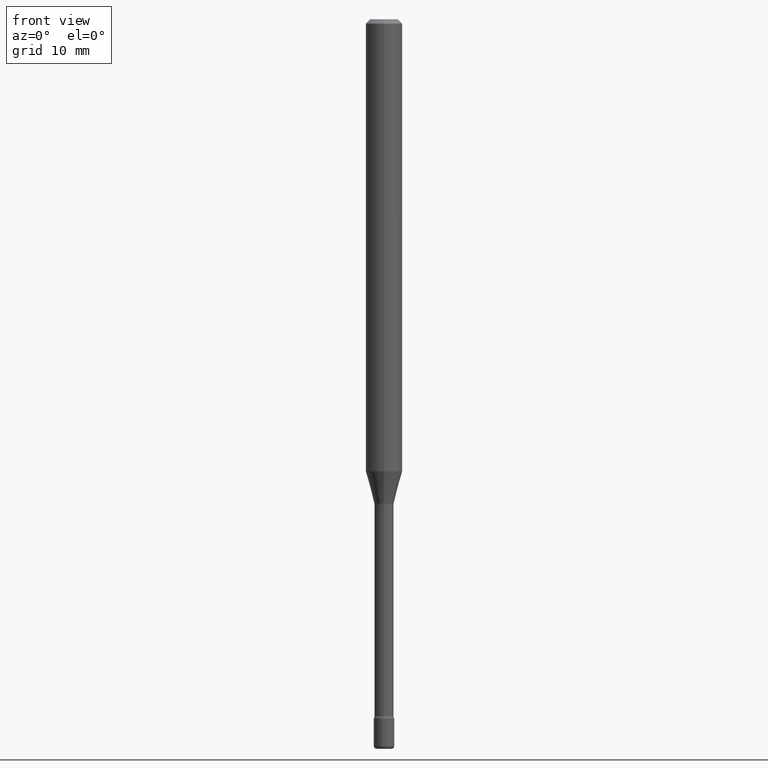
[diagram: clean part render]
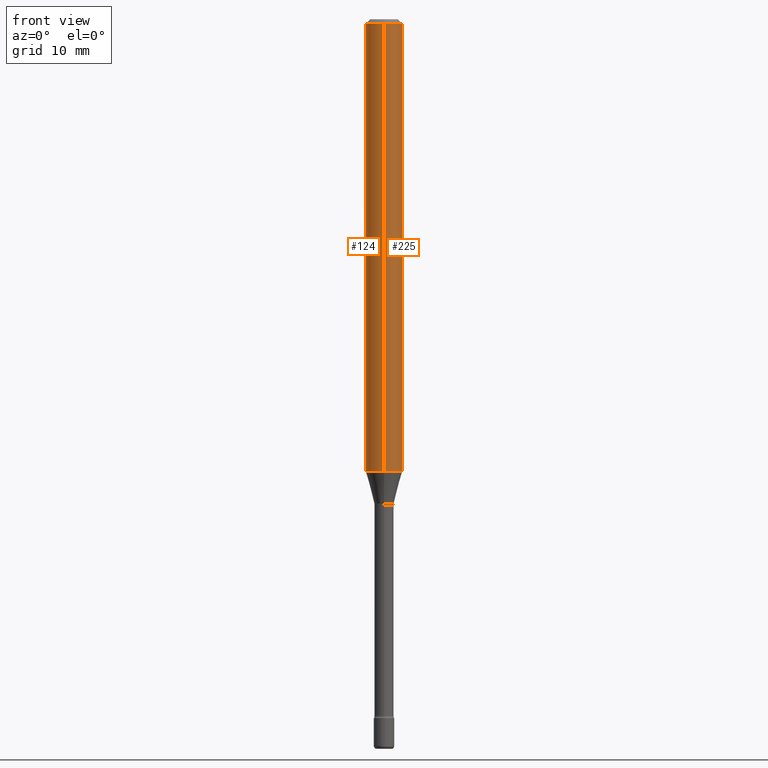
[diagram: same view with one multi-face feature highlighted, each face labeled with its STEP entity id]
A machine part, front view. The highlighted faces form ONE feature: a constant-radius fillet chain: 2 tangent blend faces with common blend radius 1.5875 mm. The faces share edges in the B-rep.
Their STEP definitions:
[1] entity #225 (Cylinder):
#9 = VERTEX_POINT ( 'NONE', #307 ) ;
#22 = CARTESIAN_POINT ( 'NONE',  ( -4.364351673553916201E-16, -0.06250000000000000000, 6.963005484091270833E-16 ) ) ;
#28 = EDGE_CURVE ( 'NONE', #57, #9, #130, .T. ) ;
#57 = VERTEX_POINT ( 'NONE', #317 ) ;
#61 = ORIENTED_EDGE ( 'NONE', *, *, #86, .F. ) ;
#83 = DIRECTION ( 'NONE',  ( -2.445361929537154917E-29, 3.491634392286096321E-15, 1.000000000000000000 ) ) ;
#84 = CARTESIAN_POINT ( 'NONE',  ( 3.668042894305739311E-31, -5.237451588429154292E-17, -0.01500000000000002720 ) ) ;
#86 = EDGE_CURVE ( 'NONE', #416, #9, #149, .T. ) ;
#103 = VERTEX_POINT ( 'NONE', #337 ) ;
#116 = DIRECTION ( 'NONE',  ( -2.445361929537154917E-29, 3.491634392286096321E-15, 1.000000000000000000 ) ) ;
#130 = LINE ( 'NONE', #477, #349 ) ;
#136 = CARTESIAN_POINT ( 'NONE',  ( 3.789164840099429105E-29, -5.410396765372311096E-15, -1.549531296095961519 ) ) ;
#149 = CIRCLE ( 'NONE', #450, 0.06250000000000000000 ) ;
#163 = DIRECTION ( 'NONE',  ( -6.982962677686265922E-15, -1.000000000000000000, 3.491634392286095926E-15 ) ) ;
#190 = DIRECTION ( 'NONE',  ( -2.445361929537154917E-29, 3.491634392286096321E-15, 1.000000000000000000 ) ) ;
#207 = FACE_OUTER_BOUND ( 'NONE', #324, .T. ) ;
#225 = ADVANCED_FACE ( 'NONE', ( #207 ), #254, .T. ) ;
#245 = LINE ( 'NONE', #22, #423 ) ;
#254 = CYLINDRICAL_SURFACE ( 'NONE', #335, 0.06250000000000000000 ) ;
#307 = CARTESIAN_POINT ( 'NONE',  ( 4.440892098501006787E-16, 0.06249999999999995143, -0.01500000000000024578 ) ) ;
#316 = CARTESIAN_POINT ( 'NONE',  ( -4.364351673553912750E-16, -0.06250000000000005551, -0.01499999999999981036 ) ) ;
#317 = CARTESIAN_POINT ( 'NONE',  ( 4.440892098501002843E-16, 0.06249999999999456685, -1.549531296095961963 ) ) ;
#324 = EDGE_LOOP ( 'NONE', ( #534, #499, #61, #460 ) ) ;
#335 = AXIS2_PLACEMENT_3D ( 'NONE', #427, #83, #163 ) ;
#337 = CARTESIAN_POINT ( 'NONE',  ( -4.364351673553540013E-16, -0.06250000000000544009, -1.549531296095961297 ) ) ;
#349 = VECTOR ( 'NONE', #116, 39.37007874015748143 ) ;
#354 = DIRECTION ( 'NONE',  ( -6.982962677686265922E-15, -1.000000000000000000, 4.370956789862821150E-15 ) ) ;
#416 = VERTEX_POINT ( 'NONE', #316 ) ;
#417 = DIRECTION ( 'NONE',  ( -2.445361929537154917E-29, 3.491634392286096321E-15, 1.000000000000000000 ) ) ;
#419 = EDGE_CURVE ( 'NONE', #103, #57, #523, .T. ) ;
#423 = VECTOR ( 'NONE', #417, 39.37007874015748143 ) ;
#427 = CARTESIAN_POINT ( 'NONE',  ( -1.169113584055446105E-44, 1.669184350826100908E-30, 4.780733988912460139E-16 ) ) ;
#429 = DIRECTION ( 'NONE',  ( -2.445361929537154917E-29, 3.491634392286096321E-15, 1.000000000000000000 ) ) ;
#450 = AXIS2_PLACEMENT_3D ( 'NONE', #84, #429, #476 ) ;
#452 = AXIS2_PLACEMENT_3D ( 'NONE', #136, #190, #354 ) ;
#460 = ORIENTED_EDGE ( 'NONE', *, *, #516, .F. ) ;
#476 = DIRECTION ( 'NONE',  ( -6.982962677686265922E-15, -1.000000000000000000, 3.483106191921935554E-15 ) ) ;
#477 = CARTESIAN_POINT ( 'NONE',  ( 4.440892098500625669E-16, 0.06250000000000000000, 2.598462493733650432E-16 ) ) ;
#499 = ORIENTED_EDGE ( 'NONE', *, *, #28, .T. ) ;
#516 = EDGE_CURVE ( 'NONE', #103, #416, #245, .T. ) ;
#523 = CIRCLE ( 'NONE', #452, 0.06250000000000000000 ) ;
#534 = ORIENTED_EDGE ( 'NONE', *, *, #419, .T. ) ;
[2] entity #124 (Cylinder):
#9 = VERTEX_POINT ( 'NONE', #307 ) ;
#14 = EDGE_LOOP ( 'NONE', ( #480, #201, #90, #508 ) ) ;
#22 = CARTESIAN_POINT ( 'NONE',  ( -4.364351673553916201E-16, -0.06250000000000000000, 6.963005484091270833E-16 ) ) ;
#28 = EDGE_CURVE ( 'NONE', #57, #9, #130, .T. ) ;
#42 = DIRECTION ( 'NONE',  ( -6.982962677686265922E-15, -1.000000000000000000, 4.370956789862821150E-15 ) ) ;
#57 = VERTEX_POINT ( 'NONE', #317 ) ;
#90 = ORIENTED_EDGE ( 'NONE', *, *, #516, .T. ) ;
#103 = VERTEX_POINT ( 'NONE', #337 ) ;
#107 = CYLINDRICAL_SURFACE ( 'NONE', #536, 0.06250000000000000000 ) ;
#116 = DIRECTION ( 'NONE',  ( -2.445361929537154917E-29, 3.491634392286096321E-15, 1.000000000000000000 ) ) ;
#124 = ADVANCED_FACE ( 'NONE', ( #462 ), #107, .T. ) ;
#126 = CIRCLE ( 'NONE', #412, 0.06250000000000000000 ) ;
#128 = EDGE_CURVE ( 'NONE', #9, #416, #504, .T. ) ;
#130 = LINE ( 'NONE', #477, #349 ) ;
#201 = ORIENTED_EDGE ( 'NONE', *, *, #257, .T. ) ;
#245 = LINE ( 'NONE', #22, #423 ) ;
#247 = AXIS2_PLACEMENT_3D ( 'NONE', #371, #413, #548 ) ;
#257 = EDGE_CURVE ( 'NONE', #57, #103, #126, .T. ) ;
#287 = DIRECTION ( 'NONE',  ( -6.982962677686265922E-15, -1.000000000000000000, 3.491634392286095926E-15 ) ) ;
#307 = CARTESIAN_POINT ( 'NONE',  ( 4.440892098501006787E-16, 0.06249999999999995143, -0.01500000000000024578 ) ) ;
#316 = CARTESIAN_POINT ( 'NONE',  ( -4.364351673553912750E-16, -0.06250000000000005551, -0.01499999999999981036 ) ) ;
#317 = CARTESIAN_POINT ( 'NONE',  ( 4.440892098501002843E-16, 0.06249999999999456685, -1.549531296095961963 ) ) ;
#333 = DIRECTION ( 'NONE',  ( -2.445361929537154917E-29, 3.491634392286096321E-15, 1.000000000000000000 ) ) ;
#337 = CARTESIAN_POINT ( 'NONE',  ( -4.364351673553540013E-16, -0.06250000000000544009, -1.549531296095961297 ) ) ;
#346 = CARTESIAN_POINT ( 'NONE',  ( 3.789164840099429105E-29, -5.410396765372311096E-15, -1.549531296095961519 ) ) ;
#349 = VECTOR ( 'NONE', #116, 39.37007874015748143 ) ;
#371 = CARTESIAN_POINT ( 'NONE',  ( 3.668042894305739311E-31, -5.237451588429154292E-17, -0.01500000000000002720 ) ) ;
#412 = AXIS2_PLACEMENT_3D ( 'NONE', #346, #518, #42 ) ;
#413 = DIRECTION ( 'NONE',  ( -2.445361929537154917E-29, 3.491634392286096321E-15, 1.000000000000000000 ) ) ;
#416 = VERTEX_POINT ( 'NONE', #316 ) ;
#417 = DIRECTION ( 'NONE',  ( -2.445361929537154917E-29, 3.491634392286096321E-15, 1.000000000000000000 ) ) ;
#423 = VECTOR ( 'NONE', #417, 39.37007874015748143 ) ;
#462 = FACE_OUTER_BOUND ( 'NONE', #14, .T. ) ;
#477 = CARTESIAN_POINT ( 'NONE',  ( 4.440892098500625669E-16, 0.06250000000000000000, 2.598462493733650432E-16 ) ) ;
#480 = ORIENTED_EDGE ( 'NONE', *, *, #28, .F. ) ;
#504 = CIRCLE ( 'NONE', #247, 0.06250000000000000000 ) ;
#508 = ORIENTED_EDGE ( 'NONE', *, *, #128, .F. ) ;
#516 = EDGE_CURVE ( 'NONE', #103, #416, #245, .T. ) ;
#518 = DIRECTION ( 'NONE',  ( -2.445361929537154917E-29, 3.491634392286096321E-15, 1.000000000000000000 ) ) ;
#536 = AXIS2_PLACEMENT_3D ( 'NONE', #544, #333, #287 ) ;
#544 = CARTESIAN_POINT ( 'NONE',  ( -1.169113584055446105E-44, 1.669184350826100908E-30, 4.780733988912460139E-16 ) ) ;
#548 = DIRECTION ( 'NONE',  ( -6.982962677686265922E-15, -1.000000000000000000, 3.483106191921935554E-15 ) ) ;